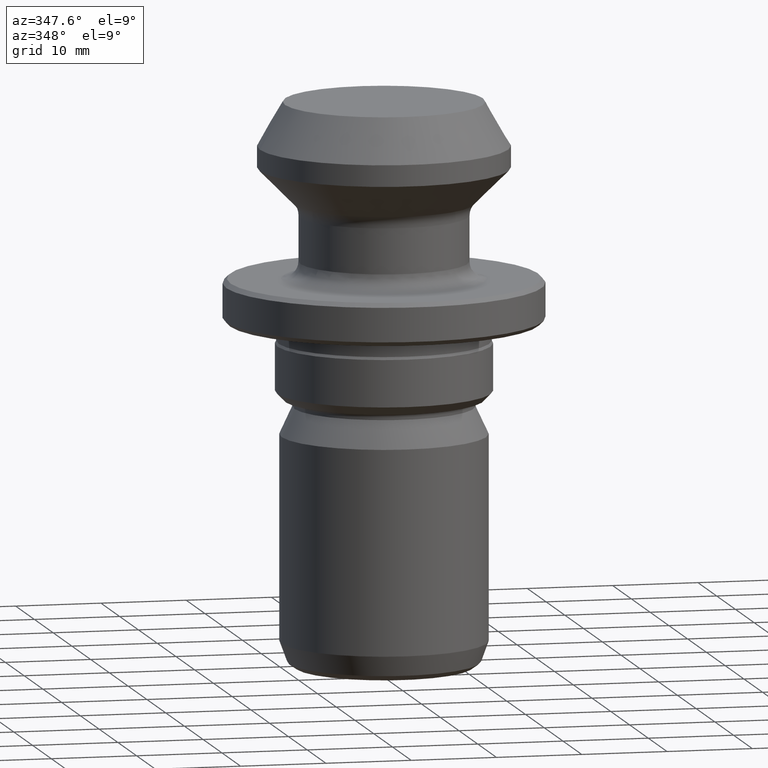
[diagram: clean part render]
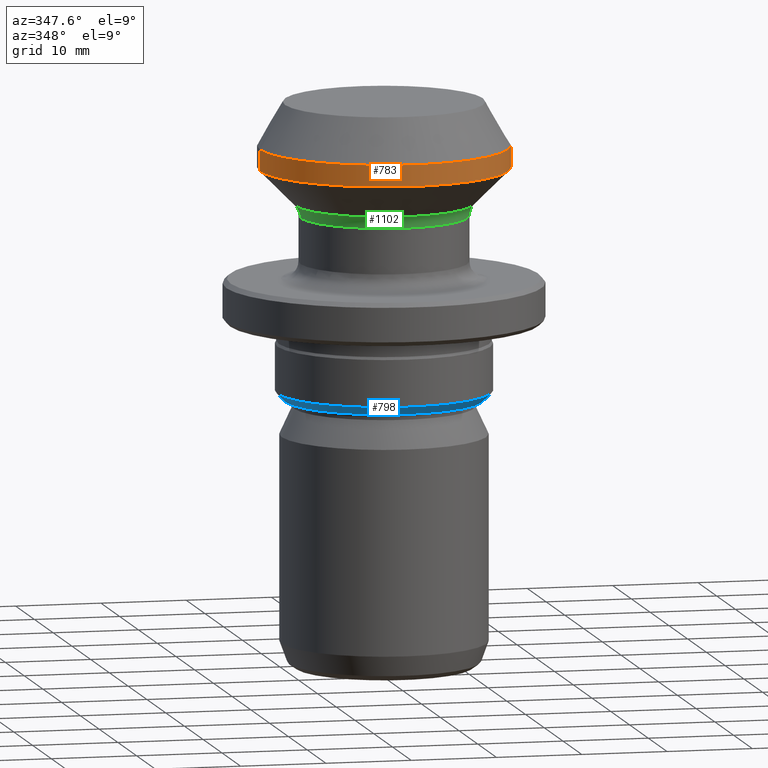
[diagram: same view with three faces highlighted in distinct colors, each labeled with its STEP entity id]
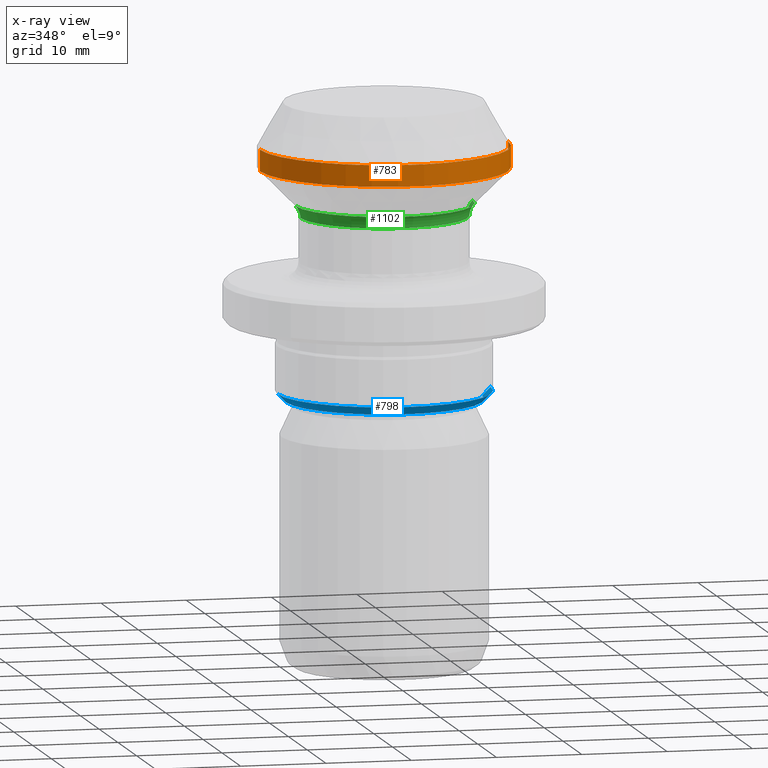
[diagram: x-ray of the same camera — body ghosted, the three highlighted faces saturated]
A machine part, auxiliary view with three faces highlighted in distinct colors.
The next image is the same camera in x-ray (body ghosted, the three faces saturated) — at least one of them is partly hidden behind the body in this view.
Their STEP definitions:

[orange] entity #783 — the highlighted cylindrical surface (partial cylindrical patch) has radius 14.55 mm, axis along (-0, -0, 1).
#28 = AXIS2_PLACEMENT_3D ( 'NONE', #1048, #82, #618 ) ;
#40 = CARTESIAN_POINT ( 'NONE',  ( 0.0000000000000000000, 0.0000000000000000000, -5.099999999999998800 ) ) ;
#82 = DIRECTION ( 'NONE',  ( -0.0000000000000000000, -0.0000000000000000000, 1.000000000000000000 ) ) ;
#107 = ORIENTED_EDGE ( 'NONE', *, *, #972, .F. ) ;
#159 = ORIENTED_EDGE ( 'NONE', *, *, #716, .T. ) ;
#163 = VECTOR ( 'NONE', #558, 1000.000000000000000 ) ;
#167 = CARTESIAN_POINT ( 'NONE',  ( -14.55000000000000100, 1.781861092759399100E-015, -5.099999999999998800 ) ) ;
#175 = VERTEX_POINT ( 'NONE', #167 ) ;
#214 = DIRECTION ( 'NONE',  ( -0.0000000000000000000, -0.0000000000000000000, 1.000000000000000000 ) ) ;
#243 = DIRECTION ( 'NONE',  ( 1.000000000000000000, 0.0000000000000000000, 0.0000000000000000000 ) ) ;
#250 = LINE ( 'NONE', #759, #986 ) ;
#269 = DIRECTION ( 'NONE',  ( 1.000000000000000000, 0.0000000000000000000, 0.0000000000000000000 ) ) ;
#313 = VERTEX_POINT ( 'NONE', #931 ) ;
#324 = CARTESIAN_POINT ( 'NONE',  ( 14.55000000000000100, 0.0000000000000000000, -5.099999999999998800 ) ) ;
#327 = CIRCLE ( 'NONE', #538, 14.55000000000000100 ) ;
#328 = ORIENTED_EDGE ( 'NONE', *, *, #531, .T. ) ;
#331 = VERTEX_POINT ( 'NONE', #324 ) ;
#364 = DIRECTION ( 'NONE',  ( -0.0000000000000000000, -0.0000000000000000000, 1.000000000000000000 ) ) ;
#387 = CARTESIAN_POINT ( 'NONE',  ( 14.55000000000000100, 0.0000000000000000000, 0.0000000000000000000 ) ) ;
#493 = EDGE_CURVE ( 'NONE', #175, #331, #327, .T. ) ;
#531 = EDGE_CURVE ( 'NONE', #313, #1178, #802, .T. ) ;
#538 = AXIS2_PLACEMENT_3D ( 'NONE', #40, #364, #269 ) ;
#556 = FACE_OUTER_BOUND ( 'NONE', #1015, .T. ) ;
#558 = DIRECTION ( 'NONE',  ( -0.0000000000000000000, -0.0000000000000000000, 1.000000000000000000 ) ) ;
#609 = DIRECTION ( 'NONE',  ( -0.0000000000000000000, -0.0000000000000000000, 1.000000000000000000 ) ) ;
#618 = DIRECTION ( 'NONE',  ( 1.000000000000000000, 0.0000000000000000000, 0.0000000000000000000 ) ) ;
#716 = EDGE_CURVE ( 'NONE', #1178, #331, #741, .T. ) ;
#741 = LINE ( 'NONE', #387, #163 ) ;
#759 = CARTESIAN_POINT ( 'NONE',  ( -14.55000000000000100, 1.781861092759399100E-015, 0.0000000000000000000 ) ) ;
#783 = ADVANCED_FACE ( 'NONE', ( #556 ), #1037, .T. ) ;
#802 = CIRCLE ( 'NONE', #28, 14.54999999999999900 ) ;
#812 = CARTESIAN_POINT ( 'NONE',  ( 0.0000000000000000000, 0.0000000000000000000, 0.0000000000000000000 ) ) ;
#846 = AXIS2_PLACEMENT_3D ( 'NONE', #812, #609, #243 ) ;
#931 = CARTESIAN_POINT ( 'NONE',  ( -14.54999999999999900, 1.781861092759398700E-015, -7.599999999999998800 ) ) ;
#972 = EDGE_CURVE ( 'NONE', #313, #175, #250, .T. ) ;
#986 = VECTOR ( 'NONE', #214, 1000.000000000000000 ) ;
#1015 = EDGE_LOOP ( 'NONE', ( #107, #328, #159, #1060 ) ) ;
#1037 = CYLINDRICAL_SURFACE ( 'NONE', #846, 14.55000000000000100 ) ;
#1040 = CARTESIAN_POINT ( 'NONE',  ( 14.54999999999999900, 0.0000000000000000000, -7.599999999999998800 ) ) ;
#1048 = CARTESIAN_POINT ( 'NONE',  ( 0.0000000000000000000, 0.0000000000000000000, -7.599999999999998800 ) ) ;
#1060 = ORIENTED_EDGE ( 'NONE', *, *, #493, .F. ) ;
#1178 = VERTEX_POINT ( 'NONE', #1040 ) ;

[blue] entity #798 — the highlighted conical surface has half-angle 45 deg.
#3 = EDGE_CURVE ( 'NONE', #580, #1085, #670, .T. ) ;
#6 = ORIENTED_EDGE ( 'NONE', *, *, #1261, .T. ) ;
#19 = DIRECTION ( 'NONE',  ( 1.000000000000000000, 0.0000000000000000000, 0.0000000000000000000 ) ) ;
#89 = DIRECTION ( 'NONE',  ( 0.7071067811865402500, 0.0000000000000000000, 0.7071067811865547900 ) ) ;
#105 = LINE ( 'NONE', #1071, #553 ) ;
#205 = VERTEX_POINT ( 'NONE', #924 ) ;
#222 = CARTESIAN_POINT ( 'NONE',  ( 12.49999999999999500, 0.0000000000000000000, -33.49999999999999300 ) ) ;
#302 = DIRECTION ( 'NONE',  ( -0.0000000000000000000, -0.0000000000000000000, 1.000000000000000000 ) ) ;
#337 = AXIS2_PLACEMENT_3D ( 'NONE', #1219, #407, #891 ) ;
#352 = CARTESIAN_POINT ( 'NONE',  ( -12.49999999999999500, 1.530808498934190900E-015, -33.49999999999999300 ) ) ;
#381 = CARTESIAN_POINT ( 'NONE',  ( 0.0000000000000000000, 0.0000000000000000000, -33.49999999999999300 ) ) ;
#407 = DIRECTION ( 'NONE',  ( -0.0000000000000000000, -0.0000000000000000000, 1.000000000000000000 ) ) ;
#412 = ORIENTED_EDGE ( 'NONE', *, *, #3, .F. ) ;
#448 = CARTESIAN_POINT ( 'NONE',  ( 11.50000000000001600, 0.0000000000000000000, -34.49999999999999300 ) ) ;
#521 = CARTESIAN_POINT ( 'NONE',  ( 0.0000000000000000000, 0.0000000000000000000, -34.49999999999999300 ) ) ;
#537 = VECTOR ( 'NONE', #89, 1000.000000000000000 ) ;
#539 = ORIENTED_EDGE ( 'NONE', *, *, #1078, .F. ) ;
#553 = VECTOR ( 'NONE', #1091, 1000.000000000000000 ) ;
#580 = VERTEX_POINT ( 'NONE', #352 ) ;
#594 = CARTESIAN_POINT ( 'NONE',  ( 11.50000000000001600, 0.0000000000000000000, -34.49999999999999300 ) ) ;
#616 = DIRECTION ( 'NONE',  ( 1.000000000000000000, 0.0000000000000000000, 0.0000000000000000000 ) ) ;
#630 = VERTEX_POINT ( 'NONE', #594 ) ;
#670 = CIRCLE ( 'NONE', #1226, 12.49999999999999500 ) ;
#739 = ORIENTED_EDGE ( 'NONE', *, *, #1182, .T. ) ;
#755 = FACE_OUTER_BOUND ( 'NONE', #1185, .T. ) ;
#777 = AXIS2_PLACEMENT_3D ( 'NONE', #521, #1240, #616 ) ;
#798 = ADVANCED_FACE ( 'NONE', ( #755 ), #1253, .T. ) ;
#891 = DIRECTION ( 'NONE',  ( 1.000000000000000000, 0.0000000000000000000, 0.0000000000000000000 ) ) ;
#924 = CARTESIAN_POINT ( 'NONE',  ( -11.50000000000001600, 1.469576158976824500E-015, -34.49999999999999300 ) ) ;
#936 = CIRCLE ( 'NONE', #777, 11.50000000000001600 ) ;
#1071 = CARTESIAN_POINT ( 'NONE',  ( -11.50000000000001600, 1.408343819019458100E-015, -34.49999999999999300 ) ) ;
#1078 = EDGE_CURVE ( 'NONE', #205, #580, #105, .T. ) ;
#1080 = LINE ( 'NONE', #448, #537 ) ;
#1085 = VERTEX_POINT ( 'NONE', #222 ) ;
#1091 = DIRECTION ( 'NONE',  ( -0.7071067811865402500, 8.659560562354844100E-017, 0.7071067811865547900 ) ) ;
#1182 = EDGE_CURVE ( 'NONE', #205, #630, #936, .T. ) ;
#1185 = EDGE_LOOP ( 'NONE', ( #539, #739, #6, #412 ) ) ;
#1219 = CARTESIAN_POINT ( 'NONE',  ( 0.0000000000000000000, 0.0000000000000000000, -34.49999999999999300 ) ) ;
#1226 = AXIS2_PLACEMENT_3D ( 'NONE', #381, #302, #19 ) ;
#1240 = DIRECTION ( 'NONE',  ( -0.0000000000000000000, -0.0000000000000000000, 1.000000000000000000 ) ) ;
#1253 = CONICAL_SURFACE ( 'NONE', #337, 11.50000000000001600, 0.7853981633974380600 ) ;
#1261 = EDGE_CURVE ( 'NONE', #630, #1085, #1080, .T. ) ;

[green] entity #1102 — the highlighted toroidal blend (fillet) surface has major radius 11.8 mm and minor (blend) radius 2 mm.
#5 = AXIS2_PLACEMENT_3D ( 'NONE', #617, #1025, #946 ) ;
#15 = DIRECTION ( 'NONE',  ( 1.000000000000000000, 0.0000000000000000000, 0.0000000000000000000 ) ) ;
#17 = CARTESIAN_POINT ( 'NONE',  ( 0.0000000000000000000, 0.0000000000000000000, -13.17842712474620400 ) ) ;
#41 = VERTEX_POINT ( 'NONE', #851 ) ;
#84 = DIRECTION ( 'NONE',  ( 1.224646799147353200E-016, 1.000000000000000000, 0.0000000000000000000 ) ) ;
#169 = AXIS2_PLACEMENT_3D ( 'NONE', #729, #84, #1143 ) ;
#172 = CARTESIAN_POINT ( 'NONE',  ( 10.38578643762690300, 0.0000000000000000000, -11.76421356237311100 ) ) ;
#193 = ORIENTED_EDGE ( 'NONE', *, *, #747, .F. ) ;
#298 = CIRCLE ( 'NONE', #1227, 10.38578643762690300 ) ;
#375 = CIRCLE ( 'NONE', #5, 2.000000000000001800 ) ;
#428 = CIRCLE ( 'NONE', #687, 9.799999999999998900 ) ;
#473 = CARTESIAN_POINT ( 'NONE',  ( -10.38578643762690300, 1.271892011746777700E-015, -11.76421356237311100 ) ) ;
#475 = DIRECTION ( 'NONE',  ( 1.000000000000000000, 0.0000000000000000000, 0.0000000000000000000 ) ) ;
#522 = FACE_OUTER_BOUND ( 'NONE', #625, .T. ) ;
#565 = DIRECTION ( 'NONE',  ( -0.0000000000000000000, -0.0000000000000000000, 1.000000000000000000 ) ) ;
#570 = DIRECTION ( 'NONE',  ( -0.0000000000000000000, -0.0000000000000000000, 1.000000000000000000 ) ) ;
#617 = CARTESIAN_POINT ( 'NONE',  ( 11.80000000000000100, 0.0000000000000000000, -13.17842712474620400 ) ) ;
#625 = EDGE_LOOP ( 'NONE', ( #804, #885, #683, #193 ) ) ;
#683 = ORIENTED_EDGE ( 'NONE', *, *, #706, .T. ) ;
#687 = AXIS2_PLACEMENT_3D ( 'NONE', #1073, #977, #15 ) ;
#699 = VERTEX_POINT ( 'NONE', #172 ) ;
#704 = EDGE_CURVE ( 'NONE', #1092, #699, #298, .T. ) ;
#706 = EDGE_CURVE ( 'NONE', #996, #41, #428, .T. ) ;
#729 = CARTESIAN_POINT ( 'NONE',  ( -11.80000000000000100, 1.445083222993876800E-015, -13.17842712474620400 ) ) ;
#747 = EDGE_CURVE ( 'NONE', #699, #41, #375, .T. ) ;
#757 = DIRECTION ( 'NONE',  ( 1.000000000000000000, 0.0000000000000000000, 0.0000000000000000000 ) ) ;
#761 = CARTESIAN_POINT ( 'NONE',  ( 0.0000000000000000000, 0.0000000000000000000, -11.76421356237311100 ) ) ;
#767 = EDGE_CURVE ( 'NONE', #1092, #996, #1132, .T. ) ;
#769 = CARTESIAN_POINT ( 'NONE',  ( -9.799999999999998900, 1.200153863164406100E-015, -13.17842712474620400 ) ) ;
#787 = TOROIDAL_SURFACE ( 'NONE', #1012, 11.80000000000000100, 2.000000000000001800 ) ;
#804 = ORIENTED_EDGE ( 'NONE', *, *, #704, .F. ) ;
#851 = CARTESIAN_POINT ( 'NONE',  ( 9.799999999999998900, 0.0000000000000000000, -13.17842712474620400 ) ) ;
#885 = ORIENTED_EDGE ( 'NONE', *, *, #767, .T. ) ;
#946 = DIRECTION ( 'NONE',  ( 0.0000000000000000000, 0.0000000000000000000, -1.000000000000000000 ) ) ;
#977 = DIRECTION ( 'NONE',  ( -0.0000000000000000000, -0.0000000000000000000, 1.000000000000000000 ) ) ;
#996 = VERTEX_POINT ( 'NONE', #769 ) ;
#1012 = AXIS2_PLACEMENT_3D ( 'NONE', #17, #565, #757 ) ;
#1025 = DIRECTION ( 'NONE',  ( 0.0000000000000000000, -1.000000000000000000, 0.0000000000000000000 ) ) ;
#1073 = CARTESIAN_POINT ( 'NONE',  ( 0.0000000000000000000, 0.0000000000000000000, -13.17842712474620400 ) ) ;
#1092 = VERTEX_POINT ( 'NONE', #473 ) ;
#1102 = ADVANCED_FACE ( 'NONE', ( #522 ), #787, .F. ) ;
#1132 = CIRCLE ( 'NONE', #169, 2.000000000000001800 ) ;
#1143 = DIRECTION ( 'NONE',  ( -1.000000000000000000, 1.224646799147353500E-016, 0.0000000000000000000 ) ) ;
#1227 = AXIS2_PLACEMENT_3D ( 'NONE', #761, #570, #475 ) ;